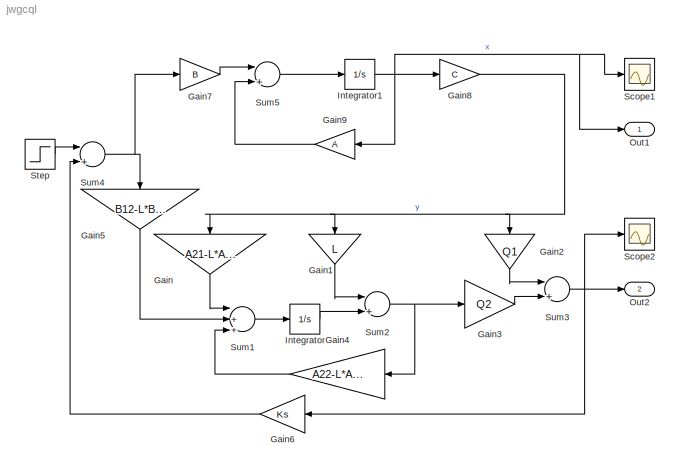
MODEL jwgcql
KIND model
CONFIG InitFcn = jwgcl()
BLOCK [Gain] Gain
  Gain = A21-L*A11
  Multiplication = Matrix(K*u)
  SID = 1
BLOCK [Gain] Gain1
  Gain = L
  Multiplication = Matrix(K*u)
  SID = 2
BLOCK [Gain] Gain2
  Gain = Q1
  Multiplication = Matrix(K*u)
  SID = 3
BLOCK [Gain] Gain3
  Gain = Q2
  Multiplication = Matrix(K*u)
  SID = 4
BLOCK [Gain] Gain4
  Gain = A22-L*A12
  Multiplication = Matrix(K*u)
  SID = 5
BLOCK [Gain] Gain5
  Gain = B12-L*B11
  Multiplication = Matrix(K*u)
  SID = 6
BLOCK [Gain] Gain6
  Gain = Ks
  Multiplication = Matrix(K*u)
  SID = 7
BLOCK [Gain] Gain7
  Gain = B
  Multiplication = Matrix(K*u)
  SID = 8
BLOCK [Gain] Gain8
  Gain = C
  Multiplication = Matrix(K*u)
  SID = 9
BLOCK [Gain] Gain9
  Gain = A
  Multiplication = Matrix(K*u)
  SID = 10
BLOCK [Integrator] Integrator
  Ports = [1, 1]
  SID = 11
BLOCK [Integrator] Integrator1
  Ports = [1, 1]
  SID = 12
BLOCK [Outport] Out1
  IconDisplay = Port number
  SID = 21
BLOCK [Outport] Out2
  IconDisplay = Port number
  Port = 2
  SID = 22
BLOCK [Scope] Scope1
  DataFormat = StructureWithTime
  Floating = off
  NumInputPorts = 1
  Ports = [1]
  SID = 13
  SampleTime = 0
  SaveName = ScopeData4
  ShowLegends = off
  TimeRange = 10
BLOCK [Scope] Scope2
  DataFormat = StructureWithTime
  Floating = off
  NumInputPorts = 1
  Ports = [1]
  SID = 14
  SampleTime = 0
  ShowLegends = off
BLOCK [Step] Step
  After = 0.2
  SID = 15
  SampleTime = 0
  Time = 0
  VectorParams1D = off
BLOCK [Sum] Sum1
  InputSameDT = off
  Inputs = |+++
  OutDataTypeStr = Inherit: Inherit via internal rule
  Ports = [3, 1]
  SID = 16
BLOCK [Sum] Sum2
  InputSameDT = off
  Inputs = |++
  OutDataTypeStr = Inherit: Inherit via internal rule
  Ports = [2, 1]
  SID = 17
BLOCK [Sum] Sum3
  InputSameDT = off
  Inputs = |++
  OutDataTypeStr = Inherit: Inherit via internal rule
  Ports = [2, 1]
  SID = 18
BLOCK [Sum] Sum4
  InputSameDT = off
  Inputs = |+-
  OutDataTypeStr = Inherit: Inherit via internal rule
  Ports = [2, 1]
  SID = 19
BLOCK [Sum] Sum5
  InputSameDT = off
  Inputs = |++
  OutDataTypeStr = Inherit: Inherit via internal rule
  Ports = [2, 1]
  SID = 20
LINE Gain1:1 -> Sum2:1
LINE Gain2:1 -> Sum3:1
LINE Gain3:1 -> Sum3:2
LINE Gain4:1 -> Sum1:3
LINE Gain5:1 -> Sum1:2
LINE Gain6:1 -> Sum4:2
LINE Gain7:1 -> Sum5:1
NET Gain8:1 -> Gain1:1, Gain2:1, Gain:1
LINE Gain9:1 -> Sum5:2
LINE Gain:1 -> Sum1:1
NET Integrator1:1 -> Gain8:1, Gain9:1, Out1:1, Scope1:1
LINE Integrator:1 -> Sum2:2
LINE Step:1 -> Sum4:1
LINE Sum1:1 -> Integrator:1
NET Sum2:1 -> Gain3:1, Gain4:1
NET Sum3:1 -> Gain6:1, Out2:1, Scope2:1
NET Sum4:1 -> Gain5:1, Gain7:1
LINE Sum5:1 -> Integrator1:1
note: NET lines group one-source signal fan-out (src -> all destinations, sorted); 1:1 wires keep LINE
